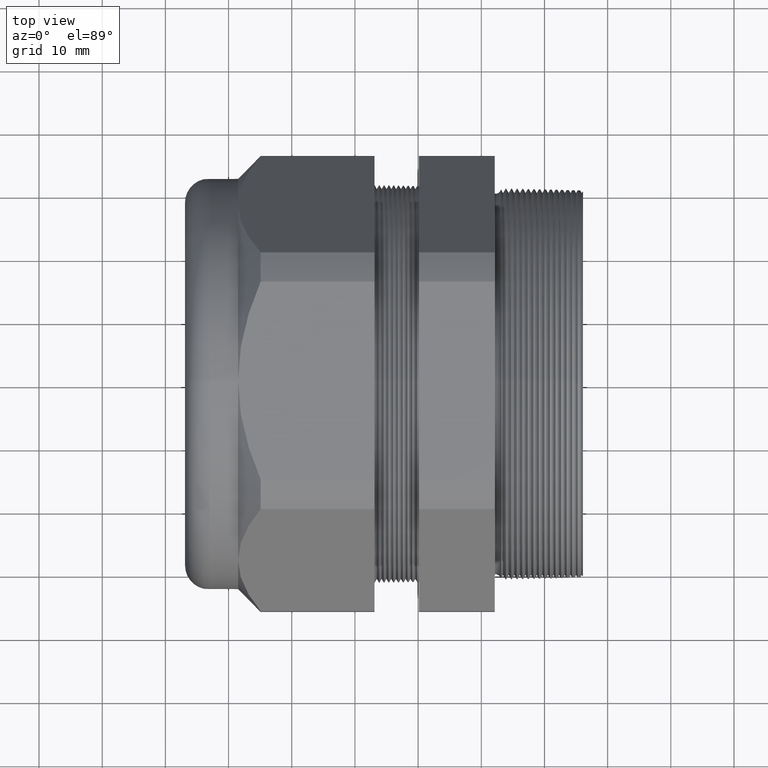
[diagram: clean part render]
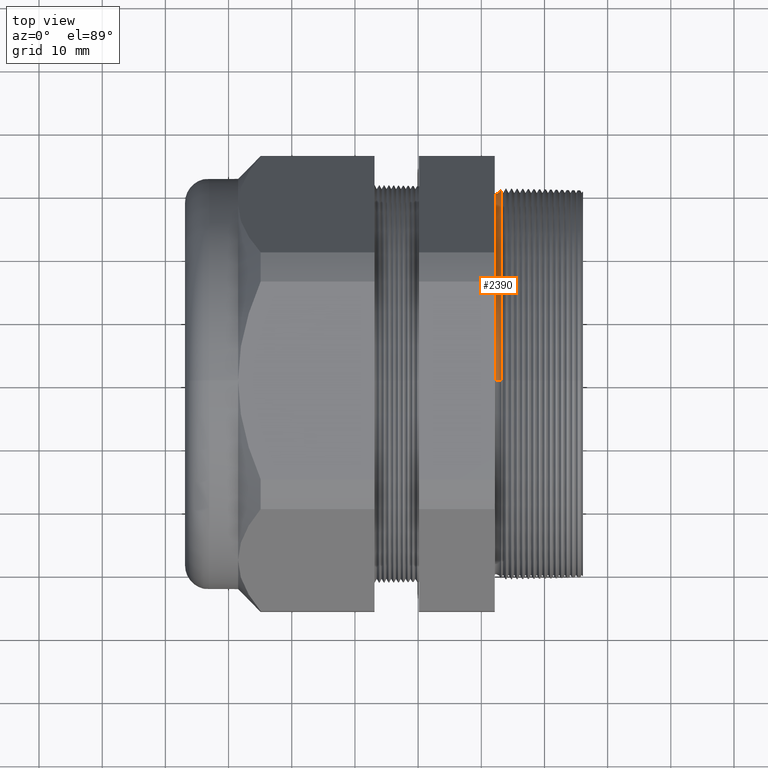
[diagram: same view with one face highlighted and labeled with its STEP entity id]
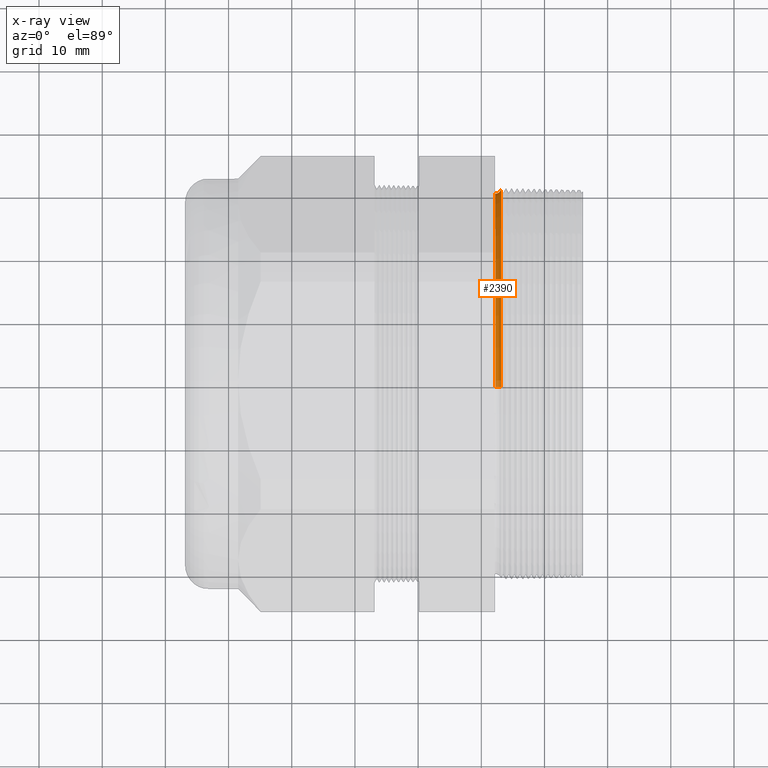
[diagram: x-ray of the same camera — body ghosted, the highlighted face saturated]
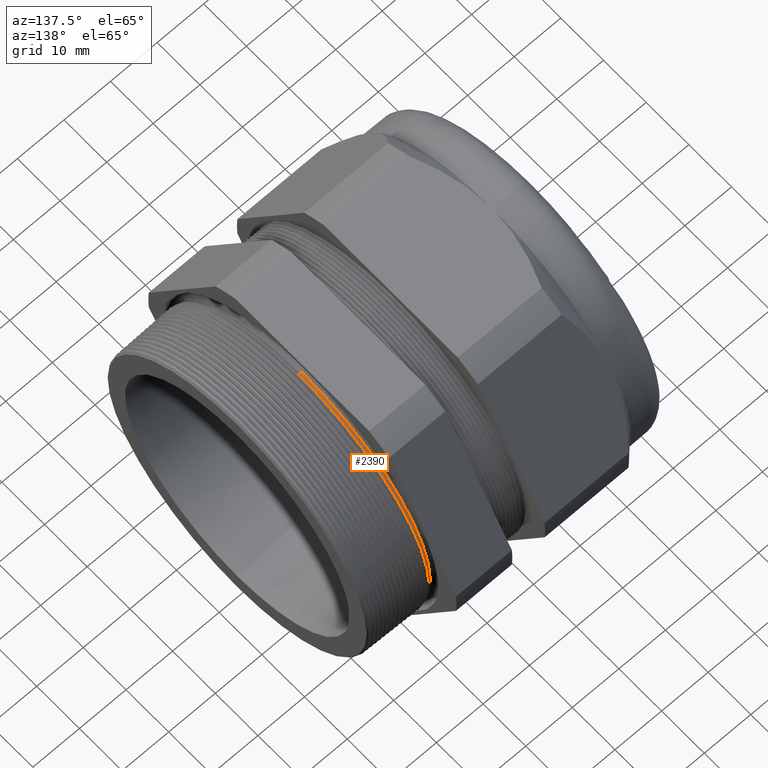
[diagram: same view with one face highlighted and labeled with its STEP entity id]
A machine part, top view. The second image highlights one B-rep face of the part: STEP entity #2390.
The next image is the same camera in x-ray: the body ghosted, the highlighted face saturated — about 3% of this face is hidden behind the body in this view.
A second angle (auxiliary view) of the same face is appended — the face is thin or edge-on in the first view.
In plain terms, the highlighted toroidal blend (fillet) surface has major radius 30.998 mm and minor (blend) radius 0.889 mm.
Its self-contained STEP definition (entity closure, byte-faithful):
#2354 = EDGE_CURVE ( 'NONE', #2455, #2404, #4742, .T. ) ;
#2390 = ADVANCED_FACE ( 'NONE', ( #4807 ), #4806, .F. ) ;
#2392 = EDGE_LOOP ( 'NONE', ( #2397, #2403, #2463, #2460 ) ) ;
#2395 = VERTEX_POINT ( 'NONE', #4791 ) ;
#2397 = ORIENTED_EDGE ( 'NONE', *, *, #2398, .T. ) ;
#2398 = EDGE_CURVE ( 'NONE', #2455, #2399, #4790, .T. ) ;
#2399 = VERTEX_POINT ( 'NONE', #4849 ) ;
#2403 = ORIENTED_EDGE ( 'NONE', *, *, #2405, .T. ) ;
#2404 = VERTEX_POINT ( 'NONE', #4843 ) ;
#2405 = EDGE_CURVE ( 'NONE', #2399, #2395, #4841, .T. ) ;
#2455 = VERTEX_POINT ( 'NONE', #4930 ) ;
#2460 = ORIENTED_EDGE ( 'NONE', *, *, #2354, .F. ) ;
#2463 = ORIENTED_EDGE ( 'NONE', *, *, #2464, .F. ) ;
#2464 = EDGE_CURVE ( 'NONE', #2404, #2395, #4923, .T. ) ;
#4738 = DIRECTION ( 'NONE',  ( 0.0000000000000000000, 0.0000000000000000000, 1.000000000000000000 ) ) ;
#4739 = DIRECTION ( 'NONE',  ( 1.000000000000000000, 0.0000000000000000000, 0.0000000000000000000 ) ) ;
#4740 = CARTESIAN_POINT ( 'NONE',  ( -0.2708463023710532800, 0.0000000000000000000, 0.0000000000000000000 ) ) ;
#4741 = AXIS2_PLACEMENT_3D ( 'NONE', #4740, #4739, #4738 ) ;
#4742 = CIRCLE ( 'NONE', #4741, 1.212741749246037500 ) ;
#4789 = AXIS2_PLACEMENT_3D ( 'NONE', #4852, #4851, #4850 ) ;
#4790 = CIRCLE ( 'NONE', #4789, 0.03499999999999989900 ) ;
#4791 = CARTESIAN_POINT ( 'NONE',  ( -0.3049999999999999400, 1.451686406612470500E-016, 1.185391908608417700 ) ) ;
#4803 = DIRECTION ( 'NONE',  ( 0.0000000000000000000, 0.0000000000000000000, -1.000000000000000000 ) ) ;
#4804 = DIRECTION ( 'NONE',  ( 1.000000000000000000, 0.0000000000000000000, 0.0000000000000000000 ) ) ;
#4805 = AXIS2_PLACEMENT_3D ( 'NONE', #4811, #4804, #4803 ) ;
#4806 = TOROIDAL_SURFACE ( 'NONE', #4805, 1.220391908608417600, 0.03499999999999997600 ) ;
#4807 = FACE_OUTER_BOUND ( 'NONE', #2392, .T. ) ;
#4811 = CARTESIAN_POINT ( 'NONE',  ( -0.3049999999999999400, 0.0000000000000000000, 0.0000000000000000000 ) ) ;
#4837 = DIRECTION ( 'NONE',  ( 0.0000000000000000000, 0.0000000000000000000, -1.000000000000000000 ) ) ;
#4838 = DIRECTION ( 'NONE',  ( 1.000000000000000000, 0.0000000000000000000, 0.0000000000000000000 ) ) ;
#4839 = CARTESIAN_POINT ( 'NONE',  ( -0.3049999999999999400, 0.0000000000000000000, 0.0000000000000000000 ) ) ;
#4840 = AXIS2_PLACEMENT_3D ( 'NONE', #4839, #4838, #4837 ) ;
#4841 = CIRCLE ( 'NONE', #4840, 1.185391908608417700 ) ;
#4843 = CARTESIAN_POINT ( 'NONE',  ( -0.2708463023710532800, 0.0000000000000000000, 1.212741749246037700 ) ) ;
#4849 = CARTESIAN_POINT ( 'NONE',  ( -0.3049999999999999400, 0.0000000000000000000, -1.185391908608417700 ) ) ;
#4850 = DIRECTION ( 'NONE',  ( 0.0000000000000000000, 0.0000000000000000000, -1.000000000000000000 ) ) ;
#4851 = DIRECTION ( 'NONE',  ( 0.0000000000000000000, -1.000000000000000000, 0.0000000000000000000 ) ) ;
#4852 = CARTESIAN_POINT ( 'NONE',  ( -0.3049999999999999400, 0.0000000000000000000, -1.220391908608417600 ) ) ;
#4919 = DIRECTION ( 'NONE',  ( 0.0000000000000000000, 1.224646799147357400E-016, 1.000000000000000000 ) ) ;
#4920 = DIRECTION ( 'NONE',  ( 0.0000000000000000000, 1.000000000000000000, -1.224646799147353200E-016 ) ) ;
#4921 = CARTESIAN_POINT ( 'NONE',  ( -0.3049999999999999400, 1.494549044582627900E-016, 1.220391908608417600 ) ) ;
#4922 = AXIS2_PLACEMENT_3D ( 'NONE', #4921, #4920, #4919 ) ;
#4923 = CIRCLE ( 'NONE', #4922, 0.03499999999999989900 ) ;
#4930 = CARTESIAN_POINT ( 'NONE',  ( -0.2708463023710532800, 1.485180301406521800E-016, -1.212741749246037700 ) ) ;